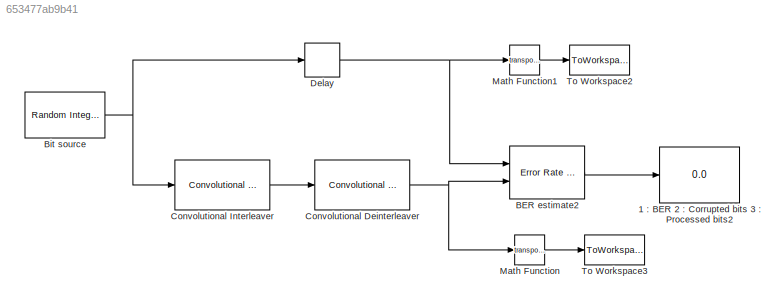
MODEL slx_653477ab9b41
KIND model
CONFIG AbsTol = auto
CONFIG EnableMultiTasking = off
CONFIG FixedStep = auto
CONFIG MaxStep = auto
CONFIG MinStep = auto
CONFIG RelTol = 1e-3
CONFIG SampleTimeConstraint = Unconstrained
CONFIG SolverName = FixedStepAuto
CONFIG StartTime = 0
CONFIG StopTime = 2
WORKSPACE source: mxarray member
WORKSPACE ITV_I = 12
WORKSPACE ITV_M = 17
WORKSPACE M = 4
WORKSPACE RS_k = 188
WORKSPACE RS_m = 8
WORKSPACE RS_n = 204
WORKSPACE RS_prim_poly = 'X^8+X^4+X^3+X^2+1'
WORKSPACE Rb = 1000
WORKSPACE SCR_init = [1 0 0 1 0 1 0 1 0 0 0 0 ... (15 elements, 1x15)]
WORKSPACE SCR_poly = '1+z^-14+z^-15'
WORKSPACE beta = 0.3
WORKSPACE osf = 16
WORKSPACE span = 12
BLOCK [Display] 1 : BER 2 : Corrupted bits 3 : Processed bits2
  Decimation = 1
  Ports = [1]
BLOCK [Reference] BER estimate2  REF=commsink2/Error Rate
Calculation
  Ports = [2, 1]
  SourceBlock = commsink2/Error Rate\nCalculation
  SourceProductBaseCode = CM
  SourceType = Error Rate Calculation
BLOCK [Reference] Bit source  REF=commrandsrc3/Random Integer
Generator
  Ports = [0, 1]
  SourceBlock = commrandsrc3/Random Integer\nGenerator
  SourceProductBaseCode = CM
  SourceType = Random Integer Generator
BLOCK [Reference] Convolutional Deinterleaver  REF=commcnvintrlv2/Convolutional
Deinterleaver
  Ports = [1, 1]
  SourceBlock = commcnvintrlv2/Convolutional\nDeinterleaver
  SourceProductBaseCode = CM
  SourceType = Convolutional Deinterleaver
BLOCK [Reference] Convolutional Interleaver  REF=commcnvintrlv2/Convolutional
Interleaver
  Ports = [1, 1]
  SourceBlock = commcnvintrlv2/Convolutional\nInterleaver
  SourceProductBaseCode = CM
  SourceType = Convolutional Interleaver
BLOCK [Delay] Delay
  DelayLength = ITV_I*ITV_M*(ITV_I-1)
  InitialCondition = 0
  InputPortMap = u0
  InputProcessing = Columns as channels (frame based)
  Ports = [1, 1]
BLOCK [Math] Math Function
  Operator = transpose
  Ports = [1, 1]
BLOCK [Math] Math Function1
  Operator = transpose
  Ports = [1, 1]
BLOCK [ToWorkspace] To Workspace2
  FixptAsFi = on
  MaxDataPoints = inf
  Ports = [1]
  SampleTime = -1
  SaveFormat = Timeseries
  VariableName = src
BLOCK [ToWorkspace] To Workspace3
  FixptAsFi = on
  MaxDataPoints = inf
  Ports = [1]
  SampleTime = -1
  SaveFormat = Timeseries
  VariableName = deint
LINE BER estimate2:1 -> 1 : BER 2 : Corrupted bits 3 : Processed bits2:1
NET Bit source:1 -> Convolutional Interleaver:1, Delay:1
NET Convolutional Deinterleaver:1 -> BER estimate2:2, Math Function:1
LINE Convolutional Interleaver:1 -> Convolutional Deinterleaver:1
NET Delay:1 -> BER estimate2:1, Math Function1:1
LINE Math Function1:1 -> To Workspace2:1
LINE Math Function:1 -> To Workspace3:1
note: NET lines group one-source signal fan-out (src -> all destinations, sorted); 1:1 wires keep LINE
